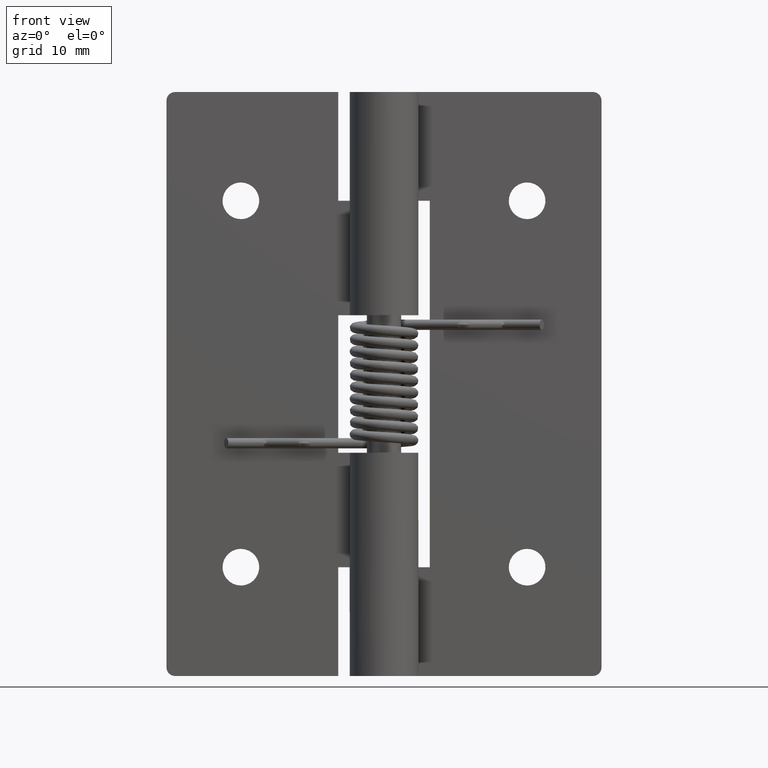
[diagram: clean part render]
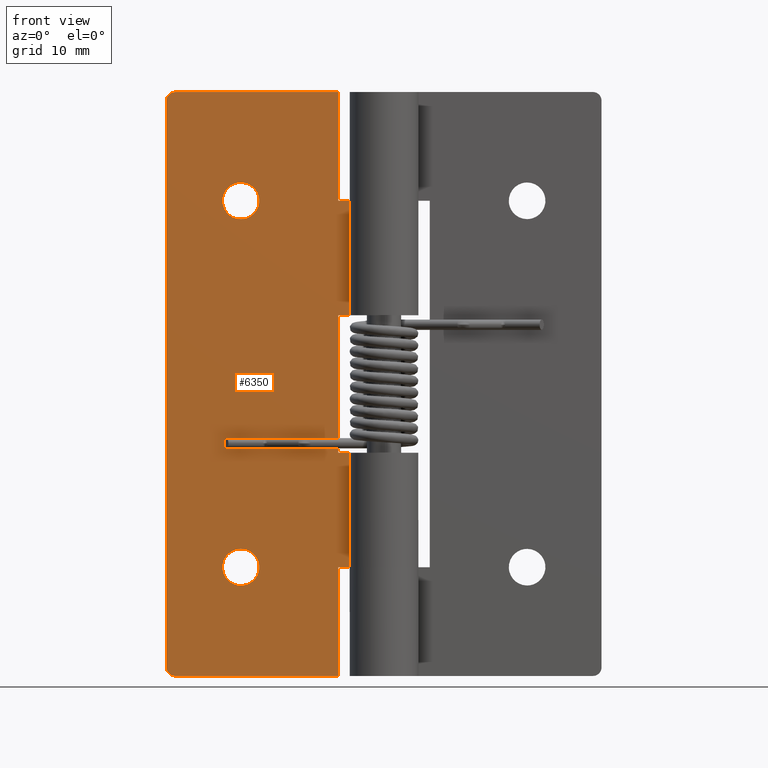
[diagram: same view with one face highlighted and labeled with its STEP entity id]
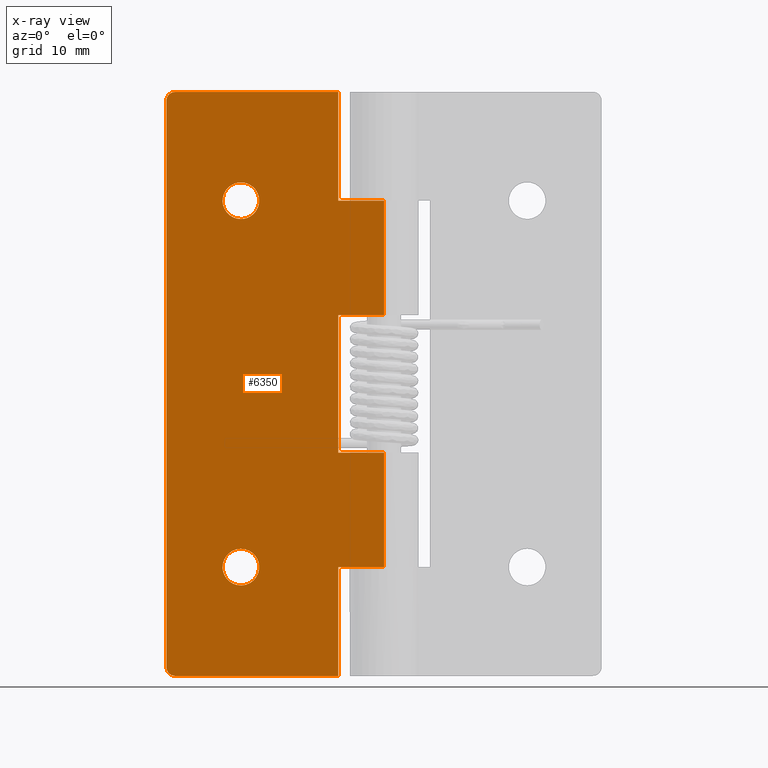
[diagram: x-ray of the same camera — body ghosted, the highlighted face saturated]
A machine part, front view. The second image highlights one B-rep face of the part: STEP entity #6350.
The next image is the same camera in x-ray: the body ghosted, the highlighted face saturated — about 0% of this face is hidden behind the body in this view.
In plain terms, the highlighted face is a freeform B-spline surface patch.
Its self-contained STEP definition (entity closure, byte-faithful):
#5225=CARTESIAN_POINT('',(-10.911184757839990,1.500000000000000,9.688854775634493));
#5226=VERTEX_POINT('',#5225);
#5227=CARTESIAN_POINT('',(-12.500000000000000,1.500000000000000,7.899999999999800));
#5228=VERTEX_POINT('',#5227);
#5229=CARTESIAN_POINT('',(-10.911184757839997,1.500000000000000,9.688854775634491));
#5230=CARTESIAN_POINT('',(-10.900000000000004,1.500000000000000,9.594758591628679));
#5231=CARTESIAN_POINT('',(-10.900000000000000,1.500000000000000,9.499999999999801));
#5232=CARTESIAN_POINT('',(-10.900000000000000,1.500000000000000,7.899999999999800));
#5233=CARTESIAN_POINT('',(-12.500000000000000,1.500000000000000,7.899999999999800));
#5241=(BOUNDED_CURVE()B_SPLINE_CURVE(2,(#5229,#5230,#5231,#5232,#5233),.UNSPECIFIED.,.F.,.U.)B_SPLINE_CURVE_WITH_KNOTS((3,2,3),(0.229562473476526,0.250000000000000,0.500000000000000),.UNSPECIFIED.)CURVE()GEOMETRIC_REPRESENTATION_ITEM()RATIONAL_B_SPLINE_CURVE((0.956026754111212,0.976055948287817,1.0,0.707106781186548,1.0))REPRESENTATION_ITEM(''));
#5242=EDGE_CURVE('',#5226,#5228,#5241,.T.);
#5283=CARTESIAN_POINT('',(-14.097015677471010,1.500000000000000,9.402322336678992));
#5284=VERTEX_POINT('',#5283);
#5290=CARTESIAN_POINT('',(-12.500000000000000,1.500000000000000,7.899999999999800));
#5291=CARTESIAN_POINT('',(-14.005129706926281,1.500000000000000,7.899999999999798));
#5292=CARTESIAN_POINT('',(-14.097015677471010,1.500000000000000,9.402322336678992));
#5300=(BOUNDED_CURVE()B_SPLINE_CURVE(2,(#5290,#5291,#5292),.UNSPECIFIED.,.F.,.U.)B_SPLINE_CURVE_WITH_KNOTS((3,3),(0.500000000000000,0.739332962227914),.UNSPECIFIED.)CURVE()GEOMETRIC_REPRESENTATION_ITEM()RATIONAL_B_SPLINE_CURVE((1.0,0.719603993299632,0.976072041643080))REPRESENTATION_ITEM(''));
#5301=EDGE_CURVE('',#5228,#5284,#5300,.T.);
#5324=CARTESIAN_POINT('',(-12.500000000000000,1.500000000000000,11.099999999999801));
#5325=VERTEX_POINT('',#5324);
#5326=CARTESIAN_POINT('',(-12.500000000000000,1.500000000000000,11.099999999999801));
#5327=CARTESIAN_POINT('',(-11.078920758809060,1.500000000000000,11.099999999999801));
#5328=CARTESIAN_POINT('',(-10.911184757839997,1.500000000000000,9.688854775634491));
#5336=(BOUNDED_CURVE()B_SPLINE_CURVE(2,(#5326,#5327,#5328),.UNSPECIFIED.,.F.,.U.)B_SPLINE_CURVE_WITH_KNOTS((3,3),(0.0,0.229562473476526),.UNSPECIFIED.)CURVE()GEOMETRIC_REPRESENTATION_ITEM()RATIONAL_B_SPLINE_CURVE((1.0,0.731050832898730,0.956026754111212))REPRESENTATION_ITEM(''));
#5337=EDGE_CURVE('',#5325,#5226,#5336,.T.);
#5339=CARTESIAN_POINT('',(-14.097015677471010,1.500000000000000,9.402322336678992));
#5340=CARTESIAN_POINT('',(-14.100000000000005,1.500000000000000,9.451115578656840));
#5341=CARTESIAN_POINT('',(-14.100000000000000,1.500000000000000,9.499999999999801));
#5342=CARTESIAN_POINT('',(-14.100000000000001,1.500000000000000,11.099999999999801));
#5343=CARTESIAN_POINT('',(-12.500000000000000,1.500000000000000,11.099999999999801));
#5351=(BOUNDED_CURVE()B_SPLINE_CURVE(2,(#5339,#5340,#5341,#5342,#5343),.UNSPECIFIED.,.F.,.U.)B_SPLINE_CURVE_WITH_KNOTS((3,2,3),(0.739332962227914,0.750000000000000,1.0),.UNSPECIFIED.)CURVE()GEOMETRIC_REPRESENTATION_ITEM()RATIONAL_B_SPLINE_CURVE((0.976072041643082,0.987502787886917,1.0,0.707106781186548,1.0))REPRESENTATION_ITEM(''));
#5352=EDGE_CURVE('',#5284,#5325,#5351,.T.);
#5411=CARTESIAN_POINT('',(-10.911184757839990,1.500000000000000,41.688854775634681));
#5412=VERTEX_POINT('',#5411);
#5413=CARTESIAN_POINT('',(-12.500000000000000,1.500000000000000,39.900000000000013));
#5414=VERTEX_POINT('',#5413);
#5415=CARTESIAN_POINT('',(-10.911184757839989,1.500000000000000,41.688854775634681));
#5416=CARTESIAN_POINT('',(-10.900000000000002,1.500000000000000,41.594758591628882));
#5417=CARTESIAN_POINT('',(-10.900000000000000,1.500000000000000,41.500000000000000));
#5418=CARTESIAN_POINT('',(-10.900000000000000,1.500000000000000,39.900000000000006));
#5419=CARTESIAN_POINT('',(-12.500000000000000,1.500000000000000,39.900000000000013));
#5427=(BOUNDED_CURVE()B_SPLINE_CURVE(2,(#5415,#5416,#5417,#5418,#5419),.UNSPECIFIED.,.F.,.U.)B_SPLINE_CURVE_WITH_KNOTS((3,2,3),(0.229562473476527,0.250000000000000,0.500000000000000),.UNSPECIFIED.)CURVE()GEOMETRIC_REPRESENTATION_ITEM()RATIONAL_B_SPLINE_CURVE((0.956026754111214,0.976055948287818,1.0,0.707106781186548,1.0))REPRESENTATION_ITEM(''));
#5428=EDGE_CURVE('',#5412,#5414,#5427,.T.);
#5469=CARTESIAN_POINT('',(-14.097015677471010,1.500000000000000,41.402322336679191));
#5470=VERTEX_POINT('',#5469);
#5476=CARTESIAN_POINT('',(-12.500000000000000,1.500000000000000,39.900000000000013));
#5477=CARTESIAN_POINT('',(-14.005129706926281,1.500000000000000,39.899999999999999));
#5478=CARTESIAN_POINT('',(-14.097015677471010,1.500000000000000,41.402322336679191));
#5486=(BOUNDED_CURVE()B_SPLINE_CURVE(2,(#5476,#5477,#5478),.UNSPECIFIED.,.F.,.U.)B_SPLINE_CURVE_WITH_KNOTS((3,3),(0.500000000000000,0.739332962227914),.UNSPECIFIED.)CURVE()GEOMETRIC_REPRESENTATION_ITEM()RATIONAL_B_SPLINE_CURVE((1.0,0.719603993299632,0.976072041643080))REPRESENTATION_ITEM(''));
#5487=EDGE_CURVE('',#5414,#5470,#5486,.T.);
#5510=CARTESIAN_POINT('',(-12.500000000000000,1.500000000000000,43.100000000000001));
#5511=VERTEX_POINT('',#5510);
#5512=CARTESIAN_POINT('',(-12.500000000000000,1.500000000000000,43.100000000000001));
#5513=CARTESIAN_POINT('',(-11.078920758809051,1.500000000000000,43.099999999999994));
#5514=CARTESIAN_POINT('',(-10.911184757839987,1.500000000000000,41.688854775634674));
#5522=(BOUNDED_CURVE()B_SPLINE_CURVE(2,(#5512,#5513,#5514),.UNSPECIFIED.,.F.,.U.)B_SPLINE_CURVE_WITH_KNOTS((3,3),(0.0,0.229562473476527),.UNSPECIFIED.)CURVE()GEOMETRIC_REPRESENTATION_ITEM()RATIONAL_B_SPLINE_CURVE((1.0,0.731050832898729,0.956026754111214))REPRESENTATION_ITEM(''));
#5523=EDGE_CURVE('',#5511,#5412,#5522,.T.);
#5525=CARTESIAN_POINT('',(-14.097015677471012,1.499999999999999,41.402322336679191));
#5526=CARTESIAN_POINT('',(-14.099999999999998,1.500000000000000,41.451115578657031));
#5527=CARTESIAN_POINT('',(-14.100000000000000,1.500000000000000,41.500000000000000));
#5528=CARTESIAN_POINT('',(-14.100000000000001,1.500000000000000,43.099999999999994));
#5529=CARTESIAN_POINT('',(-12.500000000000000,1.500000000000000,43.100000000000001));
#5537=(BOUNDED_CURVE()B_SPLINE_CURVE(2,(#5525,#5526,#5527,#5528,#5529),.UNSPECIFIED.,.F.,.U.)B_SPLINE_CURVE_WITH_KNOTS((3,2,3),(0.739332962227914,0.750000000000000,1.0),.UNSPECIFIED.)CURVE()GEOMETRIC_REPRESENTATION_ITEM()RATIONAL_B_SPLINE_CURVE((0.976072041643081,0.987502787886916,1.0,0.707106781186548,1.0))REPRESENTATION_ITEM(''));
#5538=EDGE_CURVE('',#5470,#5511,#5537,.T.);
#5589=CARTESIAN_POINT('',(-18.250000000000000,1.500000000000000,51.0));
#5590=VERTEX_POINT('',#5589);
#5591=CARTESIAN_POINT('',(-19.0,1.500000000000055,50.250000000000000));
#5592=VERTEX_POINT('',#5591);
#5593=CARTESIAN_POINT('',(-18.250000000000000,1.500000000000055,51.000000000000007));
#5594=CARTESIAN_POINT('',(-18.999999999999993,1.500000000000055,51.000000000000007));
#5595=CARTESIAN_POINT('',(-19.0,1.500000000000055,50.250000000000000));
#5603=(BOUNDED_CURVE()B_SPLINE_CURVE(2,(#5593,#5594,#5595),.UNSPECIFIED.,.F.,.U.)CURVE()GEOMETRIC_REPRESENTATION_ITEM()QUASI_UNIFORM_CURVE()RATIONAL_B_SPLINE_CURVE((1.0,0.707106781186548,1.0))REPRESENTATION_ITEM(''));
#5604=EDGE_CURVE('',#5590,#5592,#5603,.T.);
#5650=CARTESIAN_POINT('',(-19.0,1.500000000000000,0.749999999999917));
#5651=VERTEX_POINT('',#5650);
#5652=CARTESIAN_POINT('',(-18.250000000000000,1.500000000000055,0.0));
#5653=VERTEX_POINT('',#5652);
#5654=CARTESIAN_POINT('',(-19.0,1.500000000000055,0.749999999999917));
#5655=CARTESIAN_POINT('',(-18.999999999999918,1.500000000000055,0.0));
#5656=CARTESIAN_POINT('',(-18.250000000000000,1.500000000000055,0.0));
#5664=(BOUNDED_CURVE()B_SPLINE_CURVE(2,(#5654,#5655,#5656),.UNSPECIFIED.,.F.,.U.)CURVE()GEOMETRIC_REPRESENTATION_ITEM()QUASI_UNIFORM_CURVE()RATIONAL_B_SPLINE_CURVE((1.0,0.707106781186587,1.0))REPRESENTATION_ITEM(''));
#5665=EDGE_CURVE('',#5651,#5653,#5664,.T.);
#5702=CARTESIAN_POINT('',(-4.0,1.500000000000000,31.500000000000000));
#5703=VERTEX_POINT('',#5702);
#5704=CARTESIAN_POINT('',(-4.0,1.499999999999946,19.500000000000000));
#5705=VERTEX_POINT('',#5704);
#5706=CARTESIAN_POINT('',(-4.0,1.500000000000000,31.500000000000000));
#5707=CARTESIAN_POINT('',(-4.0,1.499999999999946,19.500000000000000));
#5708=QUASI_UNIFORM_CURVE('',1,(#5706,#5707),.UNSPECIFIED.,.F.,.U.);
#5709=EDGE_CURVE('',#5703,#5705,#5708,.T.);
#5767=CARTESIAN_POINT('',(-5.742883E-016,1.500000000000000,19.500000000000000));
#5768=VERTEX_POINT('',#5767);
#5769=CARTESIAN_POINT('',(-4.0,1.499999999999946,19.500000000000000));
#5770=CARTESIAN_POINT('',(-5.742883E-016,1.500000000000000,19.500000000000000));
#5771=QUASI_UNIFORM_CURVE('',1,(#5769,#5770),.UNSPECIFIED.,.F.,.U.);
#5772=EDGE_CURVE('',#5705,#5768,#5771,.T.);
#5838=CARTESIAN_POINT('',(-5.742883E-016,1.500000000000000,31.500000000000000));
#5839=VERTEX_POINT('',#5838);
#5859=CARTESIAN_POINT('',(-5.742883E-016,1.500000000000000,31.500000000000000));
#5860=CARTESIAN_POINT('',(-4.0,1.500000000000000,31.500000000000000));
#5861=QUASI_UNIFORM_CURVE('',1,(#5859,#5860),.UNSPECIFIED.,.F.,.U.);
#5862=EDGE_CURVE('',#5839,#5703,#5861,.T.);
#5880=CARTESIAN_POINT('',(-4.0,1.499999999999946,41.500000000000000));
#5881=VERTEX_POINT('',#5880);
#5894=CARTESIAN_POINT('',(-4.0,1.499999999999946,51.0));
#5895=VERTEX_POINT('',#5894);
#5901=CARTESIAN_POINT('',(-4.0,1.499999999999946,41.500000000000000));
#5902=CARTESIAN_POINT('',(-4.0,1.499999999999946,51.0));
#5903=QUASI_UNIFORM_CURVE('',1,(#5901,#5902),.UNSPECIFIED.,.F.,.U.);
#5904=EDGE_CURVE('',#5881,#5895,#5903,.T.);
#5922=CARTESIAN_POINT('',(-5.742883E-016,1.500000000000000,41.500000000000000));
#5923=VERTEX_POINT('',#5922);
#5924=CARTESIAN_POINT('',(-5.742883E-016,1.500000000000000,41.500000000000000));
#5925=CARTESIAN_POINT('',(-4.0,1.499999999999946,41.500000000000000));
#5926=QUASI_UNIFORM_CURVE('',1,(#5924,#5925),.UNSPECIFIED.,.F.,.U.);
#5927=EDGE_CURVE('',#5923,#5881,#5926,.T.);
#5984=CARTESIAN_POINT('',(-4.0,1.499999999999946,9.499999999999801));
#5985=VERTEX_POINT('',#5984);
#5986=CARTESIAN_POINT('',(-4.0,1.500000000000000,0.0));
#5987=VERTEX_POINT('',#5986);
#5988=CARTESIAN_POINT('',(-4.0,1.499999999999946,9.499999999999801));
#5989=CARTESIAN_POINT('',(-4.0,1.500000000000000,0.0));
#5990=QUASI_UNIFORM_CURVE('',1,(#5988,#5989),.UNSPECIFIED.,.F.,.U.);
#5991=EDGE_CURVE('',#5985,#5987,#5990,.T.);
#6050=CARTESIAN_POINT('',(-5.742883E-016,1.500000000000000,9.499999999999840));
#6051=VERTEX_POINT('',#6050);
#6071=CARTESIAN_POINT('',(-5.742883E-016,1.500000000000000,9.499999999999840));
#6072=CARTESIAN_POINT('',(-4.0,1.499999999999946,9.499999999999801));
#6073=QUASI_UNIFORM_CURVE('',1,(#6071,#6072),.UNSPECIFIED.,.F.,.U.);
#6074=EDGE_CURVE('',#6051,#5985,#6073,.T.);
#6113=CARTESIAN_POINT('',(-5.742883E-016,1.500000000000000,9.499999999999840));
#6114=CARTESIAN_POINT('',(-5.742883E-016,1.500000000000000,19.500000000000000));
#6115=QUASI_UNIFORM_CURVE('',1,(#6113,#6114),.UNSPECIFIED.,.F.,.U.);
#6116=EDGE_CURVE('',#6051,#5768,#6115,.T.);
#6144=CARTESIAN_POINT('',(-5.742883E-016,1.500000000000000,31.500000000000000));
#6145=CARTESIAN_POINT('',(-5.742883E-016,1.500000000000000,41.500000000000000));
#6146=QUASI_UNIFORM_CURVE('',1,(#6144,#6145),.UNSPECIFIED.,.F.,.U.);
#6147=EDGE_CURVE('',#5839,#5923,#6146,.T.);
#6262=CARTESIAN_POINT('',(-4.0,1.500000000000000,0.0));
#6263=CARTESIAN_POINT('',(-18.250000000000000,1.500000000000055,0.0));
#6264=QUASI_UNIFORM_CURVE('',1,(#6262,#6263),.UNSPECIFIED.,.F.,.U.);
#6265=EDGE_CURVE('',#5987,#5653,#6264,.T.);
#6283=CARTESIAN_POINT('',(-4.0,1.499999999999946,51.0));
#6284=CARTESIAN_POINT('',(-18.250000000000000,1.500000000000000,51.0));
#6285=QUASI_UNIFORM_CURVE('',1,(#6283,#6284),.UNSPECIFIED.,.F.,.U.);
#6286=EDGE_CURVE('',#5895,#5590,#6285,.T.);
#6309=CARTESIAN_POINT('',(-19.0,1.500000000000000,0.749999999999917));
#6310=CARTESIAN_POINT('',(-19.0,1.500000000000055,50.250000000000000));
#6311=QUASI_UNIFORM_CURVE('',1,(#6309,#6310),.UNSPECIFIED.,.F.,.U.);
#6312=EDGE_CURVE('',#5651,#5592,#6311,.T.);
#6317=CARTESIAN_POINT('',(-19.949049963174311,1.500000000000000,-2.547449901152102));
#6318=CARTESIAN_POINT('',(-19.949049963174311,1.500000000000000,53.547451269078707));
#6319=CARTESIAN_POINT('',(0.949050472794025,1.500000000000000,-2.547449901152102));
#6320=CARTESIAN_POINT('',(0.949050472794025,1.500000000000000,53.547451269078707));
#6321=B_SPLINE_SURFACE_WITH_KNOTS('',1,1,((#6317,#6319),(#6318,#6320)),.UNSPECIFIED.,.F.,.F.,.U.,(2,2),(2,2),(0.0,56.094901170230813),(0.0,20.898100435968342),.UNSPECIFIED.);
#6322=ORIENTED_EDGE('',*,*,#5604,.T.);
#6323=ORIENTED_EDGE('',*,*,#6312,.F.);
#6324=ORIENTED_EDGE('',*,*,#5665,.T.);
#6325=ORIENTED_EDGE('',*,*,#6265,.F.);
#6326=ORIENTED_EDGE('',*,*,#5991,.F.);
#6327=ORIENTED_EDGE('',*,*,#6074,.F.);
#6328=ORIENTED_EDGE('',*,*,#6116,.T.);
#6329=ORIENTED_EDGE('',*,*,#5772,.F.);
#6330=ORIENTED_EDGE('',*,*,#5709,.F.);
#6331=ORIENTED_EDGE('',*,*,#5862,.F.);
#6332=ORIENTED_EDGE('',*,*,#6147,.T.);
#6333=ORIENTED_EDGE('',*,*,#5927,.T.);
#6334=ORIENTED_EDGE('',*,*,#5904,.T.);
#6335=ORIENTED_EDGE('',*,*,#6286,.T.);
#6336=EDGE_LOOP('',(#6322,#6323,#6324,#6325,#6326,#6327,#6328,#6329,#6330,#6331,#6332,#6333,#6334,#6335));
#6337=FACE_OUTER_BOUND('',#6336,.T.);
#6338=ORIENTED_EDGE('',*,*,#5487,.T.);
#6339=ORIENTED_EDGE('',*,*,#5538,.T.);
#6340=ORIENTED_EDGE('',*,*,#5523,.T.);
#6341=ORIENTED_EDGE('',*,*,#5428,.T.);
#6342=EDGE_LOOP('',(#6338,#6339,#6340,#6341));
#6343=FACE_BOUND('',#6342,.T.);
#6344=ORIENTED_EDGE('',*,*,#5301,.T.);
#6345=ORIENTED_EDGE('',*,*,#5352,.T.);
#6346=ORIENTED_EDGE('',*,*,#5337,.T.);
#6347=ORIENTED_EDGE('',*,*,#5242,.T.);
#6348=EDGE_LOOP('',(#6344,#6345,#6346,#6347));
#6349=FACE_BOUND('',#6348,.T.);
#6350=ADVANCED_FACE('',(#6337,#6343,#6349),#6321,.F.);